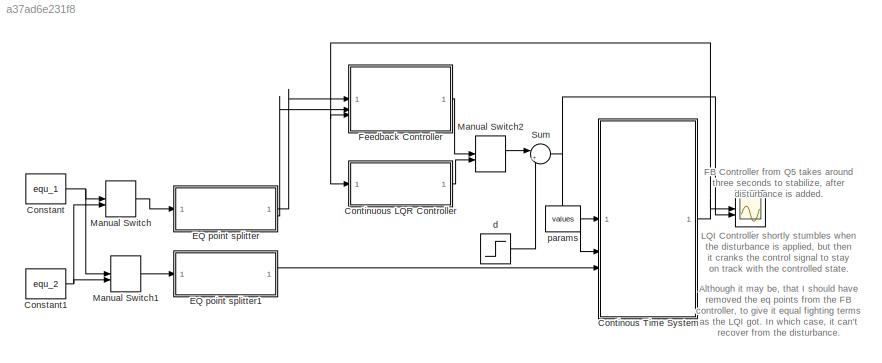
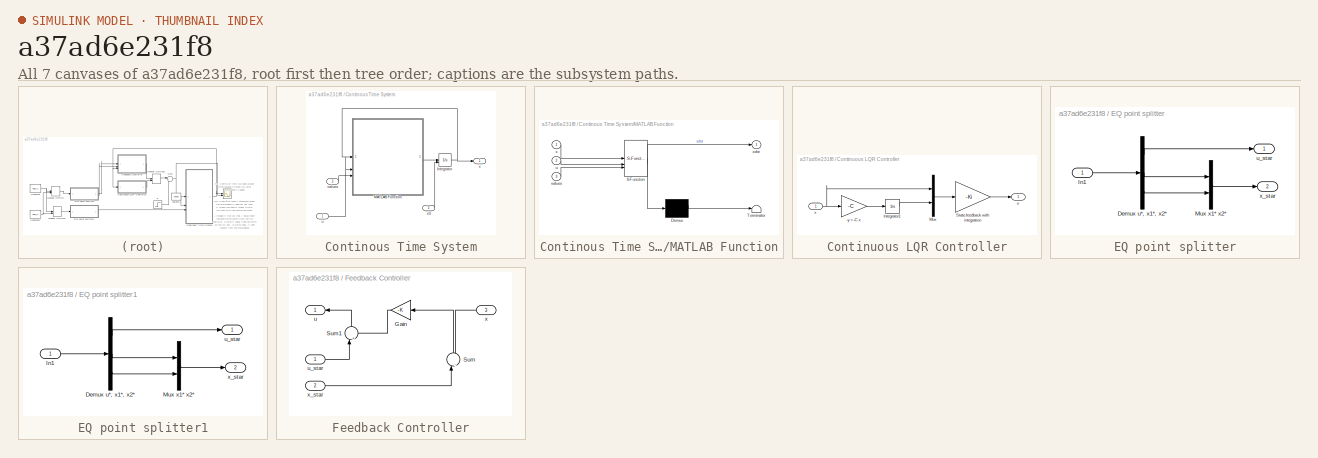
[diagram: thumbnail index - all 7 canvases of the model, root first then tree order]
MODEL slx_a37ad6e231f8
KIND model
CONFIG AbsTol = auto
CONFIG EnableMultiTasking = off
CONFIG FixedStep = 0.01
CONFIG MaxStep = auto
CONFIG MinStep = auto
CONFIG RelTol = 1e-3
CONFIG SampleTimeConstraint = Unconstrained
CONFIG SolverName = FixedStepAuto
CONFIG StartTime = 0.0
CONFIG StopTime = 200
BLOCK [Constant] Constant
  Value = equ_1
BLOCK [Constant] Constant1
  Value = equ_2
BLOCK [SubSystem] Continous Time System
BLOCK [Integrator] Continous Time System/Integrator
  InitialConditionSource = external
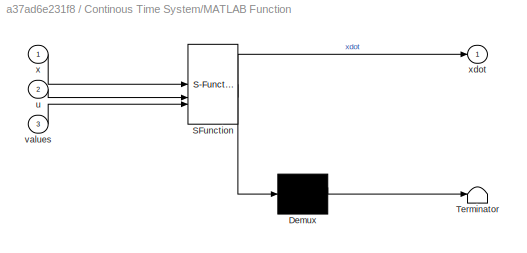
BLOCK [SubSystem] Continous Time System/MATLAB Function
  ErrorFcn = Stateflow.Translate.translate
  PermitHierarchicalResolution = ExplicitOnly
  SFBlockType = MATLAB Function
  TreatAsAtomicUnit = on
BLOCK [Demux] Continous Time System/MATLAB Function/ Demux 
  Outputs = 1
BLOCK [S-Function] Continous Time System/MATLAB Function/ SFunction 
  EnableBusSupport = on
  FunctionName = sf_sfun
  PortCounts = [3 2]
  SFcnIsStateOwnerBlock = off
  SFunctionDeploymentMode = off
  Tag = Stateflow S-Function 2
BLOCK [Terminator] Continous Time System/MATLAB Function/ Terminator 
BLOCK [Inport] Continous Time System/MATLAB Function/u
  Port = 2
BLOCK [Inport] Continous Time System/MATLAB Function/values
  Port = 3
BLOCK [Inport] Continous Time System/MATLAB Function/x
BLOCK [Outport] Continous Time System/MATLAB Function/xdot
BLOCK [Inport] Continous Time System/u
BLOCK [Inport] Continous Time System/values
  Port = 2
BLOCK [Outport] Continous Time System/x
BLOCK [Inport] Continous Time System/x0
  Port = 3
BLOCK [SubSystem] Continuous LQR Controller
BLOCK [Gain] Continuous LQR Controller/-y = -C x
  Gain = -C
  Multiplication = Matrix(K*u) (u vector)
BLOCK [Integrator] Continuous LQR Controller/Integrator1
BLOCK [Mux] Continuous LQR Controller/Mux
  DisplayOption = bar
  Inputs = 2
BLOCK [Gain] Continuous LQR Controller/State-feedback with integration
  Gain = -Ki
  Multiplication = Matrix(K*u) (u vector)
BLOCK [Outport] Continuous LQR Controller/u
BLOCK [Inport] Continuous LQR Controller/x
BLOCK [SubSystem] EQ point splitter
BLOCK [Demux] EQ point splitter/Demux u*, x1*, x2*
  Outputs = 3
BLOCK [Inport] EQ point splitter/In1
BLOCK [Mux] EQ point splitter/Mux x1* x2*
  DisplayOption = bar
  Inputs = 2
BLOCK [Outport] EQ point splitter/u_star
BLOCK [Outport] EQ point splitter/x_star
  Port = 2
BLOCK [SubSystem] EQ point splitter1
BLOCK [Demux] EQ point splitter1/Demux u*, x1*, x2*
  Outputs = 3
BLOCK [Inport] EQ point splitter1/In1
BLOCK [Mux] EQ point splitter1/Mux x1* x2*
  DisplayOption = bar
  Inputs = 2
BLOCK [Outport] EQ point splitter1/u_star
BLOCK [Outport] EQ point splitter1/x_star
  Port = 2
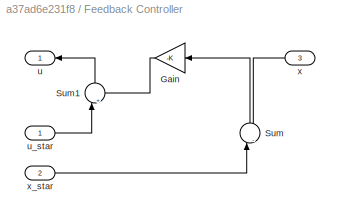
BLOCK [SubSystem] Feedback Controller
BLOCK [Gain] Feedback Controller/Gain
  Gain = -K
  Multiplication = Matrix(K*u)
  NameLocation = top
BLOCK [Sum] Feedback Controller/Sum
  Inputs = |-+
  NameLocation = right
BLOCK [Sum] Feedback Controller/Sum1
  Inputs = |++
  NameLocation = right
BLOCK [Outport] Feedback Controller/u
  NameLocation = top
BLOCK [Inport] Feedback Controller/u_star
BLOCK [Inport] Feedback Controller/x
  NameLocation = top
  Port = 3
BLOCK [Inport] Feedback Controller/x_star
  Port = 2
BLOCK [ManualSwitch] Manual Switch
  CurrentSetting = 0
BLOCK [ManualSwitch] Manual Switch1
BLOCK [ManualSwitch] Manual Switch2
BLOCK [Sum] Sum
  Inputs = |++
BLOCK [Step] d
  After = -10
  SampleTime = 0
  Time = 3
BLOCK [Constant] params
  Value = values
BLOCK [Scope] y
  Floating = off
  NumInputPorts = 2
  ScopeSpecificationString = Simulink.scopes.TimeScopeBlockCfg('CurrentConfiguration', extmgr.ConfigurationSet(extmgr.Configuration('Core','General UI',true),extmgr.Configuration('Core','Source UI',true),extmgr.Configuration('Sources','WiredSimulink',true),extmgr.Configuration('Visuals','Time Domain',true,'SerializedDisplays',{struct('MinYLimReal','-11.25','MaxYLimReal','1.25','YLabelReal','','MinYLimMag','0.00000','MaxYLimMa...<+1558ch>
ANNOTATION (root): Although it may be, that I should have removed the eq points from the FB controller, to give it equal fighting terms as the LQI got. In which case, it can't recover from the disturbance.
ANNOTATION (root): FB Controller from Q5 takes around three seconds to stabilize, after disturbance is added.
ANNOTATION (root): LQI Controller shortly stumbles when the disturbance is applied, but then it cranks the control signal to stay on track with the controlled state.
NET Constant1:1 -> Manual Switch1:2, Manual Switch:2
NET Constant:1 -> Manual Switch1:1, Manual Switch:1
NET Continous Time System/Integrator:1 -> Continous Time System/MATLAB Function:1, Continous Time System/x:1
LINE Continous Time System/MATLAB Function:1 -> Continous Time System/Integrator:1
LINE Continous Time System/u:1 -> Continous Time System/MATLAB Function:2
LINE Continous Time System/values:1 -> Continous Time System/MATLAB Function:3
LINE Continous Time System/x0:1 -> Continous Time System/Integrator:2
NET Continous Time System:1 -> Continuous LQR Controller:1, Feedback Controller:3, y:1
LINE Continuous LQR Controller/-y = -C x:1 -> Continuous LQR Controller/Integrator1:1
LINE Continuous LQR Controller/Integrator1:1 -> Continuous LQR Controller/Mux:2
LINE Continuous LQR Controller/Mux:1 -> Continuous LQR Controller/State-feedback with integration:1
LINE Continuous LQR Controller/State-feedback with integration:1 -> Continuous LQR Controller/u:1
NET Continuous LQR Controller/x:1 -> Continuous LQR Controller/-y = -C x:1, Continuous LQR Controller/Mux:1
LINE Continuous LQR Controller:1 -> Manual Switch2:2
LINE EQ point splitter/Demux u*, x1*, x2*:1 -> EQ point splitter/u_star:1
LINE EQ point splitter/Demux u*, x1*, x2*:2 -> EQ point splitter/Mux x1* x2*:1
LINE EQ point splitter/Demux u*, x1*, x2*:3 -> EQ point splitter/Mux x1* x2*:2
LINE EQ point splitter/In1:1 -> EQ point splitter/Demux u*, x1*, x2*:1
LINE EQ point splitter/Mux x1* x2*:1 -> EQ point splitter/x_star:1
LINE EQ point splitter1/Demux u*, x1*, x2*:1 -> EQ point splitter1/u_star:1
LINE EQ point splitter1/Demux u*, x1*, x2*:2 -> EQ point splitter1/Mux x1* x2*:1
LINE EQ point splitter1/Demux u*, x1*, x2*:3 -> EQ point splitter1/Mux x1* x2*:2
LINE EQ point splitter1/In1:1 -> EQ point splitter1/Demux u*, x1*, x2*:1
LINE EQ point splitter1/Mux x1* x2*:1 -> EQ point splitter1/x_star:1
LINE EQ point splitter1:2 -> Continous Time System:3
LINE EQ point splitter:1 -> Feedback Controller:1
LINE EQ point splitter:2 -> Feedback Controller:2
LINE Feedback Controller/Gain:1 -> Feedback Controller/Sum1:2
LINE Feedback Controller/Sum1:1 -> Feedback Controller/u:1
LINE Feedback Controller/Sum:1 -> Feedback Controller/Gain:1
LINE Feedback Controller/u_star:1 -> Feedback Controller/Sum1:1
LINE Feedback Controller/x:1 -> Feedback Controller/Sum:2
LINE Feedback Controller/x_star:1 -> Feedback Controller/Sum:1
LINE Feedback Controller:1 -> Manual Switch2:1
LINE Manual Switch1:1 -> EQ point splitter1:1
LINE Manual Switch2:1 -> Sum:1
LINE Manual Switch:1 -> EQ point splitter:1
NET Sum:1 -> Continous Time System:1, y:2
LINE d:1 -> Sum:2
LINE params:1 -> Continous Time System:2
note: NET lines group one-source signal fan-out (src -> all destinations, sorted); 1:1 wires keep LINE
CHART Continous Time System/MATLAB Function states=1 transitions=1
  STATE_LABEL 'eML_blk_kernel()'
  STATE_LABEL 'SCRIPT:\nfunction xdot = fcn(x, u, values)\n\nd = values(1);\nlambda = values(2);\n\nxdot = [-d*x(1)*abs(x(1)) + x(2);\n         -lambda*x(2) + u];'
CHART  states=0 transitions=0
